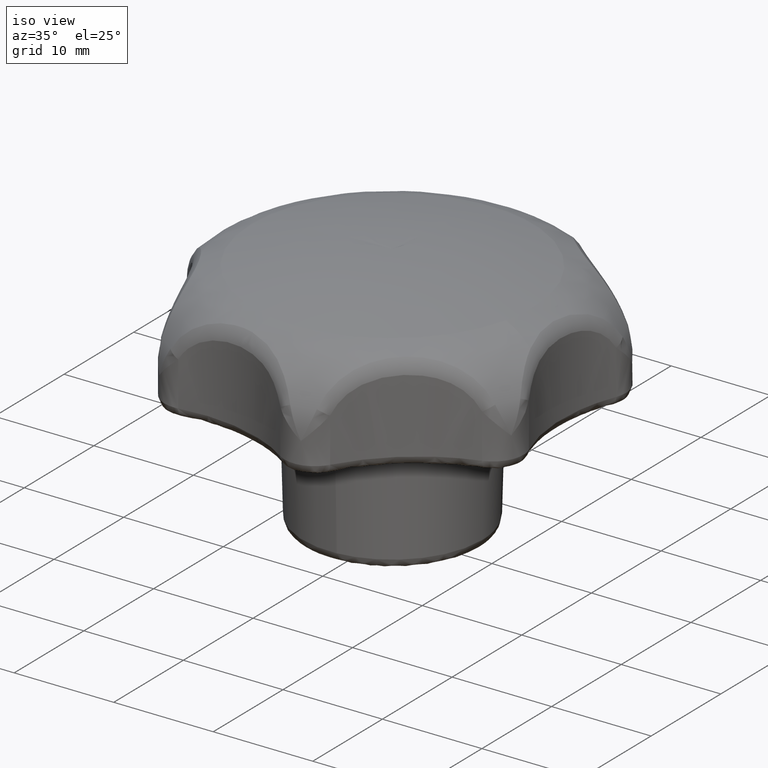
[diagram: clean part render]
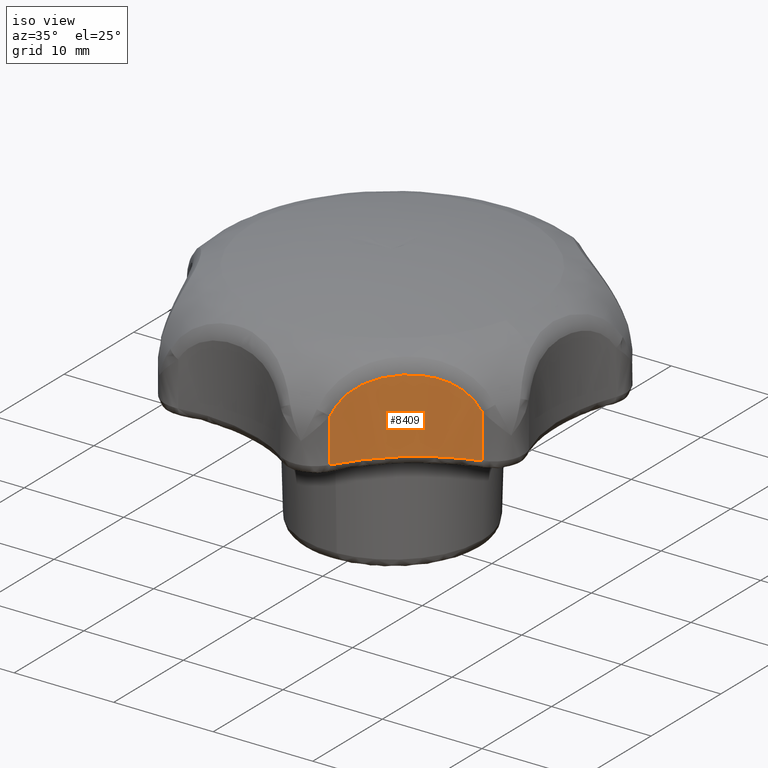
[diagram: same view with one face highlighted and labeled with its STEP entity id]
A machine part, iso view. The second image highlights one B-rep face of the part: STEP entity #8409.
In plain terms, the highlighted face is a freeform B-spline surface patch.
Its self-contained STEP definition (entity closure, byte-faithful):
#4705=CARTESIAN_POINT('',(6.386493953986790,-18.064100268040299,14.000000000000121));
#4706=VERTEX_POINT('',#4705);
#4843=CARTESIAN_POINT('',(16.190066107806100,-10.246012305419599,14.000000000000121));
#4844=VERTEX_POINT('',#4843);
#4858=CARTESIAN_POINT('',(6.386493953986790,-18.064100268040299,14.000000000000121));
#4859=CARTESIAN_POINT('',(9.737287950314144,-12.210173747074579,14.000000000000117));
#4860=CARTESIAN_POINT('',(16.190066107806089,-10.246012305419599,14.000000000000121));
#4868=(BOUNDED_CURVE()B_SPLINE_CURVE(2,(#4858,#4859,#4860),.UNSPECIFIED.,.F.,.U.)CURVE()GEOMETRIC_REPRESENTATION_ITEM()QUASI_UNIFORM_CURVE()RATIONAL_B_SPLINE_CURVE((1.0,0.929508312056964,1.0))REPRESENTATION_ITEM(''));
#4869=EDGE_CURVE('',#4706,#4844,#4868,.T.);
#5817=CARTESIAN_POINT('',(16.190066107806100,-10.246012305419599,18.449535524119650));
#5818=VERTEX_POINT('',#5817);
#6059=CARTESIAN_POINT('',(6.386493953986790,-18.064100268040299,18.449534082608402));
#6060=VERTEX_POINT('',#6059);
#6074=CARTESIAN_POINT('',(16.190066107806100,-10.246012305419599,18.449535524119650));
#6075=CARTESIAN_POINT('',(16.046567859145711,-10.289691745783260,18.724807808375580));
#6076=CARTESIAN_POINT('',(15.880318874425640,-10.342337327973009,18.980415925193348));
#6077=CARTESIAN_POINT('',(15.600308021794950,-10.437045545801469,19.336399282675689));
#6078=CARTESIAN_POINT('',(15.501836236190121,-10.471253301248391,19.450463232971870));
#6079=CARTESIAN_POINT('',(15.346667416269330,-10.526936875560660,19.614740022130430));
#6080=CARTESIAN_POINT('',(15.293699919410630,-10.546227579948489,19.668361419918210));
#6081=CARTESIAN_POINT('',(15.185305376044299,-10.586347384694809,19.773331159397792));
#6082=CARTESIAN_POINT('',(15.129811656233469,-10.607203796020420,19.824726680669841));
#6083=CARTESIAN_POINT('',(14.849202882572360,-10.714402534102470,20.073516218460441));
#6084=CARTESIAN_POINT('',(14.612615551051469,-10.810250650238070,20.248603588773161));
#6085=CARTESIAN_POINT('',(14.243592880036889,-10.970568596918620,20.480302015022421));
#6086=CARTESIAN_POINT('',(14.118215302134470,-11.026768392109270,20.552358505547119));
#6087=CARTESIAN_POINT('',(13.927008637742039,-11.115404378866909,20.653163671481689));
#6088=CARTESIAN_POINT('',(13.862634810599729,-11.145727619101701,20.685605781774282));
#6089=CARTESIAN_POINT('',(13.733473640018930,-11.207579486990991,20.747864222879169));
#6090=CARTESIAN_POINT('',(13.668790646196269,-11.239056122556489,20.777636634220229));
#6091=CARTESIAN_POINT('',(13.344993439738740,-11.399197737347270,20.920131873496182));
#6092=CARTESIAN_POINT('',(13.084769322562099,-11.536132557477760,21.013885283653639));
#6093=CARTESIAN_POINT('',(12.564612280691030,-11.827858083285211,21.169262073661010));
#6094=CARTESIAN_POINT('',(12.304670977631000,-11.982645467112700,21.230864089029261));
#6095=CARTESIAN_POINT('',(11.981100606634920,-12.187533659259680,21.291190161893681));
#6096=CARTESIAN_POINT('',(11.916452750377580,-12.229082112949341,21.302415171791299));
#6097=CARTESIAN_POINT('',(11.787312899418771,-12.313329700958681,21.323244957147459));
#6098=CARTESIAN_POINT('',(11.722793668804581,-12.356049005713150,21.332851206121031));
#6099=CARTESIAN_POINT('',(11.530516602177460,-12.485255292885570,21.359188589888792));
#6100=CARTESIAN_POINT('',(11.403698241084800,-12.573009645228669,21.373504591369159));
#6101=CARTESIAN_POINT('',(11.027302423959600,-12.841090757587210,21.407544912898981));
#6102=CARTESIAN_POINT('',(10.781780205988779,-13.026232679219380,21.418463750973451));
#6103=CARTESIAN_POINT('',(10.301443054566350,-13.409259435899919,21.418494154328531));
#6104=CARTESIAN_POINT('',(10.066628431423609,-13.607144610822109,21.407603631796270));
#6105=CARTESIAN_POINT('',(9.607723509427455,-14.015647769201379,21.362477585037990));
#6106=CARTESIAN_POINT('',(9.383524464010069,-14.226374142505071,21.328233887926299));
#6107=CARTESIAN_POINT('',(8.946428174895706,-14.660190985125690,21.231525856844989));
#6108=CARTESIAN_POINT('',(8.736937591709596,-14.879904178396339,21.169777046046011));
#6109=CARTESIAN_POINT('',(8.336023335756998,-15.322852347720829,21.014255190408939));
#6110=CARTESIAN_POINT('',(8.144601902949628,-15.546095504074851,20.920497997054088));
#6111=CARTESIAN_POINT('',(7.916813516901867,-15.825604866211480,20.778371253442462));
#6112=CARTESIAN_POINT('',(7.871831091264053,-15.881527341227120,20.748691953584821));
#6113=CARTESIAN_POINT('',(7.783025104428927,-15.993359915176340,20.686669303917530));
#6114=CARTESIAN_POINT('',(7.739118988069017,-16.049377231932692,20.654260223221090));
#6115=CARTESIAN_POINT('',(7.609790901866405,-16.216496648069889,20.553283404435010));
#6116=CARTESIAN_POINT('',(7.526973772334226,-16.326375738708808,20.481168415440941));
#6117=CARTESIAN_POINT('',(7.288472730486002,-16.650528170258710,20.249579454736558));
#6118=CARTESIAN_POINT('',(7.142716737223078,-16.859359448069000,20.074932768990291));
#6119=CARTESIAN_POINT('',(6.976482126394306,-17.107903854039311,19.827685230627559));
#6120=CARTESIAN_POINT('',(6.944034996341320,-17.156984624129400,19.776783135167399));
#6121=CARTESIAN_POINT('',(6.880733920714616,-17.253788358612130,19.671955978771031));
#6122=CARTESIAN_POINT('',(6.849831128348766,-17.301589859281140,19.617927988281931));
#6123=CARTESIAN_POINT('',(6.760378993488009,-17.441419800307919,19.452790529136252));
#6124=CARTESIAN_POINT('',(6.704801700523911,-17.530296907900510,19.338208560742220));
#6125=CARTESIAN_POINT('',(6.549459819004535,-17.783314795487481,18.980920294925351));
#6126=CARTESIAN_POINT('',(6.460999065054562,-17.933937441809039,18.724769020287990));
#6127=CARTESIAN_POINT('',(6.386493953986790,-18.064100268040299,18.449534082608402));
#6128=B_SPLINE_CURVE_WITH_KNOTS('',3,(#6074,#6075,#6076,#6077,#6078,#6079,#6080,#6081,#6082,#6083,#6084,#6085,#6086,#6087,#6088,#6089,#6090,#6091,#6092,#6093,#6094,#6095,#6096,#6097,#6098,#6099,#6100,#6101,#6102,#6103,#6104,#6105,#6106,#6107,#6108,#6109,#6110,#6111,#6112,#6113,#6114,#6115,#6116,#6117,#6118,#6119,#6120,#6121,#6122,#6123,#6124,#6125,#6126,#6127),.UNSPECIFIED.,.F.,.U.,(4,2,2,2,2,2,2,2,2,2,2,2,2,2,2,2,2,2,2,2,2,2,2,2,2,2,4),(0.0,0.062500000000000,0.093750000000000,0.109375000000000,0.124999999999999,0.187500000000000,0.218750000000000,0.234375000000000,0.250000000000000,0.312499999999999,0.374999999999999,0.390624999999999,0.406249999999998,0.437499999999998,0.499999999999997,0.562499999999997,0.624999999999996,0.687499999999996,0.749999999999995,0.765624999999995,0.781249999999995,0.812499999999995,0.874999999999995,0.890624999999996,0.906249999999996,0.937499999999997,1.0),.UNSPECIFIED.);
#6129=EDGE_CURVE('',#5818,#6060,#6128,.T.);
#8381=CARTESIAN_POINT('',(16.787889752139112,-10.075917972410990,21.603940942752910));
#8382=CARTESIAN_POINT('',(16.787889752139112,-10.075917972410990,13.809901476431300));
#8383=CARTESIAN_POINT('',(9.558738266721532,-11.990636655009965,21.603940942752917));
#8384=CARTESIAN_POINT('',(9.558738266721532,-11.990636655009965,13.809901476431303));
#8385=CARTESIAN_POINT('',(6.085325233320186,-18.613489569880301,21.603940942752914));
#8386=CARTESIAN_POINT('',(6.085325233320186,-18.613489569880301,13.809901476431303));
#8394=(BOUNDED_SURFACE()B_SPLINE_SURFACE(1,2,((#8381,#8383,#8385),(#8382,#8384,#8386)),.UNSPECIFIED.,.F.,.F.,.U.)B_SPLINE_SURFACE_WITH_KNOTS((2,2),(3,3),(0.0,7.794039466321611),(0.0,14.295721379902760),.UNSPECIFIED.)GEOMETRIC_REPRESENTATION_ITEM()RATIONAL_B_SPLINE_SURFACE(((0.999530612692634,0.911119877637308,0.991251855654127),(0.999530612692634,0.911119877637308,0.991251855654127)))REPRESENTATION_ITEM('')SURFACE());
#8395=CARTESIAN_POINT('',(6.386493953986790,-18.064100268040299,18.449534082608402));
#8396=CARTESIAN_POINT('',(6.386493953986790,-18.064100268040299,14.000000000000121));
#8397=QUASI_UNIFORM_CURVE('',1,(#8395,#8396),.UNSPECIFIED.,.F.,.U.);
#8398=EDGE_CURVE('',#6060,#4706,#8397,.T.);
#8399=ORIENTED_EDGE('',*,*,#8398,.T.);
#8400=ORIENTED_EDGE('',*,*,#4869,.T.);
#8401=CARTESIAN_POINT('',(16.190066107806100,-10.246012305419599,18.449535524119650));
#8402=CARTESIAN_POINT('',(16.190066107806100,-10.246012305419599,14.000000000000121));
#8403=QUASI_UNIFORM_CURVE('',1,(#8401,#8402),.UNSPECIFIED.,.F.,.U.);
#8404=EDGE_CURVE('',#5818,#4844,#8403,.T.);
#8405=ORIENTED_EDGE('',*,*,#8404,.F.);
#8406=ORIENTED_EDGE('',*,*,#6129,.T.);
#8407=EDGE_LOOP('',(#8399,#8400,#8405,#8406));
#8408=FACE_OUTER_BOUND('',#8407,.T.);
#8409=ADVANCED_FACE('',(#8408),#8394,.F.);